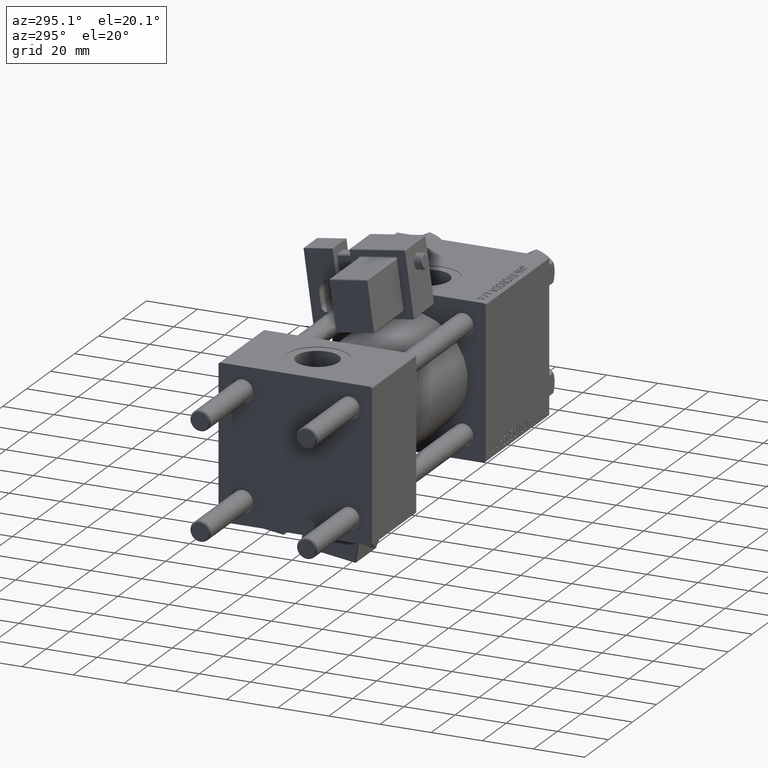
[diagram: clean part render]
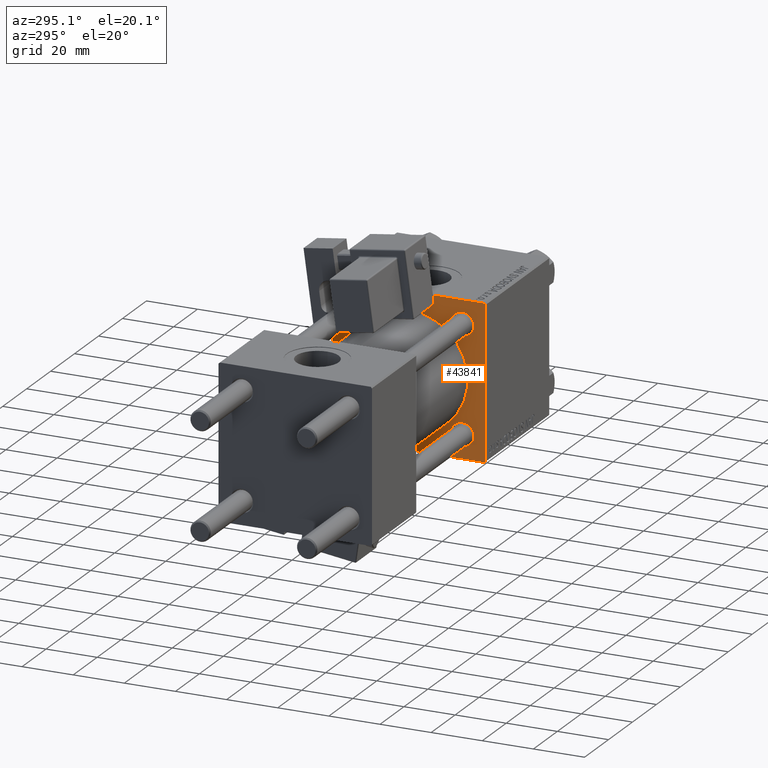
[diagram: same view with one face highlighted and labeled with its STEP entity id]
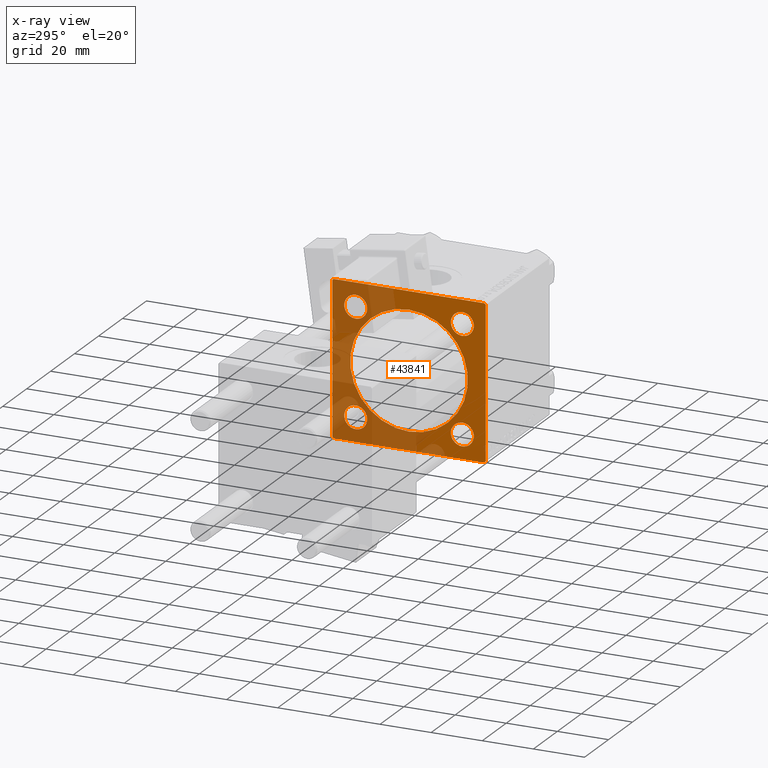
[diagram: x-ray of the same camera — body ghosted, the highlighted face saturated]
A machine part, auxiliary view. The second image highlights one B-rep face of the part: STEP entity #43841.
The next image is the same camera in x-ray: the body ghosted, the highlighted face saturated — about 50% of this face is hidden behind the body in this view.
In plain terms, the highlighted planar face has unit normal (-1, 0, 0).
Its self-contained STEP definition (entity closure, byte-faithful):
#621 = ORIENTED_EDGE ( 'NONE', *, *, #51734, .T. ) ;
#1034 = DIRECTION ( 'NONE',  ( 0.000000000000000000, -1.000000000000000000, -1.156482317317871478E-16 ) ) ;
#1044 = VERTEX_POINT ( 'NONE', #7725 ) ;
#1045 = CIRCLE ( 'NONE', #40900, 4.500000000000003553 ) ;
#1445 = CARTESIAN_POINT ( 'NONE',  ( 95.00000000000000000, -29.74999999999999645, -29.74999999999999645 ) ) ;
#1521 = VERTEX_POINT ( 'NONE', #49293 ) ;
#1912 = CARTESIAN_POINT ( 'NONE',  ( 95.00000000000000000, 20.84999999999999787, -20.85000000000000142 ) ) ;
#1961 = AXIS2_PLACEMENT_3D ( 'NONE', #8359, #15533, #48157 ) ;
#2458 = AXIS2_PLACEMENT_3D ( 'NONE', #2661, #35549, #39269 ) ;
#2661 = CARTESIAN_POINT ( 'NONE',  ( 95.00000000000000000, -20.84999999999999076, 20.85000000000000497 ) ) ;
#2669 = CARTESIAN_POINT ( 'NONE',  ( 95.00000000000000000, 30.00000000000000000, 30.00000000000000000 ) ) ;
#2690 = EDGE_LOOP ( 'NONE', ( #12554, #621 ) ) ;
#2717 = VERTEX_POINT ( 'NONE', #15092 ) ;
#3229 = EDGE_LOOP ( 'NONE', ( #28483, #6792 ) ) ;
#3376 = DIRECTION ( 'NONE',  ( 1.000000000000000000, -0.000000000000000000, 0.000000000000000000 ) ) ;
#3587 = CARTESIAN_POINT ( 'NONE',  ( 95.00000000000000000, 0.000000000000000000, 23.00000000000000000 ) ) ;
#3860 = DIRECTION ( 'NONE',  ( 0.000000000000000000, -1.000000000000000000, -1.156482317317871478E-16 ) ) ;
#4090 = DIRECTION ( 'NONE',  ( -0.000000000000000000, -0.7071067811865474617, -0.7071067811865474617 ) ) ;
#4539 = ORIENTED_EDGE ( 'NONE', *, *, #18459, .T. ) ;
#4785 = CARTESIAN_POINT ( 'NONE',  ( 95.00000000000000000, -29.50000000000000000, 29.99999999999999289 ) ) ;
#5288 = FACE_BOUND ( 'NONE', #38736, .T. ) ;
#5803 = EDGE_CURVE ( 'NONE', #38784, #17542, #22262, .T. ) ;
#6792 = ORIENTED_EDGE ( 'NONE', *, *, #9576, .T. ) ;
#6959 = EDGE_LOOP ( 'NONE', ( #17771, #35581, #27398, #28347, #28892, #27233, #23309, #4539 ) ) ;
#7725 = CARTESIAN_POINT ( 'NONE',  ( 95.00000000000000000, 20.84999999999999787, 25.35000000000000497 ) ) ;
#8209 = FACE_BOUND ( 'NONE', #2690, .T. ) ;
#8359 = CARTESIAN_POINT ( 'NONE',  ( 95.00000000000000000, 20.84999999999999787, 20.85000000000000142 ) ) ;
#8588 = EDGE_CURVE ( 'NONE', #25941, #43987, #50641, .T. ) ;
#9153 = AXIS2_PLACEMENT_3D ( 'NONE', #40187, #44430, #36733 ) ;
#9508 = EDGE_CURVE ( 'NONE', #19907, #2717, #40484, .T. ) ;
#9576 = EDGE_CURVE ( 'NONE', #50157, #1044, #19323, .T. ) ;
#9592 = DIRECTION ( 'NONE',  ( 1.000000000000000000, -0.000000000000000000, 0.000000000000000000 ) ) ;
#10347 = LINE ( 'NONE', #2669, #18720 ) ;
#10831 = AXIS2_PLACEMENT_3D ( 'NONE', #36097, #27129, #19410 ) ;
#11128 = DIRECTION ( 'NONE',  ( 0.000000000000000000, 0.000000000000000000, -1.000000000000000000 ) ) ;
#11184 = EDGE_LOOP ( 'NONE', ( #35089, #45853 ) ) ;
#12437 = AXIS2_PLACEMENT_3D ( 'NONE', #12982, #37660, #29457 ) ;
#12554 = ORIENTED_EDGE ( 'NONE', *, *, #21989, .T. ) ;
#12720 = FACE_BOUND ( 'NONE', #11184, .T. ) ;
#12982 = CARTESIAN_POINT ( 'NONE',  ( 95.00000000000000000, 0.000000000000000000, 0.000000000000000000 ) ) ;
#13376 = DIRECTION ( 'NONE',  ( 1.000000000000000000, -0.000000000000000000, 0.000000000000000000 ) ) ;
#14147 = EDGE_CURVE ( 'NONE', #19131, #14720, #10347, .T. ) ;
#14720 = VERTEX_POINT ( 'NONE', #18925 ) ;
#14761 = EDGE_CURVE ( 'NONE', #40895, #19131, #28184, .T. ) ;
#15092 = CARTESIAN_POINT ( 'NONE',  ( 95.00000000000000000, 20.84999999999999787, -25.35000000000000497 ) ) ;
#15368 = LINE ( 'NONE', #35008, #23819 ) ;
#15533 = DIRECTION ( 'NONE',  ( 1.000000000000000000, -0.000000000000000000, 0.000000000000000000 ) ) ;
#15616 = EDGE_CURVE ( 'NONE', #31967, #49813, #15368, .T. ) ;
#16301 = LINE ( 'NONE', #29313, #51021 ) ;
#17542 = VERTEX_POINT ( 'NONE', #40110 ) ;
#17771 = ORIENTED_EDGE ( 'NONE', *, *, #5803, .T. ) ;
#17832 = ORIENTED_EDGE ( 'NONE', *, *, #35845, .T. ) ;
#18158 = CARTESIAN_POINT ( 'NONE',  ( 95.00000000000000000, 2.816687638038911957E-15, -23.00000000000000000 ) ) ;
#18459 = EDGE_CURVE ( 'NONE', #14720, #38784, #16301, .T. ) ;
#18720 = VECTOR ( 'NONE', #11128, 1000.000000000000000 ) ;
#18925 = CARTESIAN_POINT ( 'NONE',  ( 95.00000000000000000, 30.00000000000000000, -29.49999999999997868 ) ) ;
#19098 = EDGE_CURVE ( 'NONE', #2717, #19907, #1045, .T. ) ;
#19131 = VERTEX_POINT ( 'NONE', #46995 ) ;
#19174 = EDGE_CURVE ( 'NONE', #31967, #28905, #37742, .T. ) ;
#19323 = CIRCLE ( 'NONE', #37127, 4.500000000000003553 ) ;
#19410 = DIRECTION ( 'NONE',  ( 0.000000000000000000, 0.000000000000000000, -1.000000000000000000 ) ) ;
#19630 = EDGE_CURVE ( 'NONE', #1044, #50157, #49363, .T. ) ;
#19907 = VERTEX_POINT ( 'NONE', #51580 ) ;
#20380 = ORIENTED_EDGE ( 'NONE', *, *, #28458, .T. ) ;
#20425 = FACE_BOUND ( 'NONE', #3229, .T. ) ;
#20559 = VECTOR ( 'NONE', #38534, 1000.000000000000000 ) ;
#20956 = FACE_BOUND ( 'NONE', #46942, .T. ) ;
#21989 = EDGE_CURVE ( 'NONE', #26106, #1521, #22385, .T. ) ;
#22262 = LINE ( 'NONE', #33404, #22589 ) ;
#22348 = CARTESIAN_POINT ( 'NONE',  ( 95.00000000000000000, -30.00000000000000000, 29.99999999999999289 ) ) ;
#22385 = CIRCLE ( 'NONE', #23204, 4.500000000000003553 ) ;
#22589 = VECTOR ( 'NONE', #1034, 1000.000000000000000 ) ;
#23204 = AXIS2_PLACEMENT_3D ( 'NONE', #51971, #27577, #51195 ) ;
#23309 = ORIENTED_EDGE ( 'NONE', *, *, #14147, .T. ) ;
#23540 = CARTESIAN_POINT ( 'NONE',  ( 95.00000000000000000, -20.84999999999999076, -20.85000000000000497 ) ) ;
#23620 = CIRCLE ( 'NONE', #2458, 4.500000000000003553 ) ;
#23819 = VECTOR ( 'NONE', #28104, 1000.000000000000114 ) ;
#24033 = LINE ( 'NONE', #40219, #37822 ) ;
#24399 = CIRCLE ( 'NONE', #10831, 23.00000000000000000 ) ;
#24412 = VERTEX_POINT ( 'NONE', #3587 ) ;
#24508 = VERTEX_POINT ( 'NONE', #18158 ) ;
#25941 = VERTEX_POINT ( 'NONE', #49142 ) ;
#26106 = VERTEX_POINT ( 'NONE', #46489 ) ;
#26314 = CARTESIAN_POINT ( 'NONE',  ( 95.00000000000000000, -20.84999999999999076, -20.85000000000000497 ) ) ;
#27089 = DIRECTION ( 'NONE',  ( 0.000000000000000000, 0.000000000000000000, 1.000000000000000000 ) ) ;
#27129 = DIRECTION ( 'NONE',  ( 1.000000000000000000, 0.000000000000000000, 0.000000000000000000 ) ) ;
#27233 = ORIENTED_EDGE ( 'NONE', *, *, #14761, .T. ) ;
#27398 = ORIENTED_EDGE ( 'NONE', *, *, #19174, .F. ) ;
#27577 = DIRECTION ( 'NONE',  ( 1.000000000000000000, -0.000000000000000000, 0.000000000000000000 ) ) ;
#27770 = AXIS2_PLACEMENT_3D ( 'NONE', #23540, #3376, #35743 ) ;
#28104 = DIRECTION ( 'NONE',  ( -0.000000000000000000, 0.7071067811865474617, 0.7071067811865474617 ) ) ;
#28184 = LINE ( 'NONE', #44108, #41711 ) ;
#28347 = ORIENTED_EDGE ( 'NONE', *, *, #15616, .T. ) ;
#28458 = EDGE_CURVE ( 'NONE', #24508, #24412, #43658, .T. ) ;
#28483 = ORIENTED_EDGE ( 'NONE', *, *, #19630, .T. ) ;
#28489 = CARTESIAN_POINT ( 'NONE',  ( 95.00000000000000000, 29.50000000000000000, -29.99999999999999289 ) ) ;
#28892 = ORIENTED_EDGE ( 'NONE', *, *, #31563, .F. ) ;
#28905 = VERTEX_POINT ( 'NONE', #30840 ) ;
#29313 = CARTESIAN_POINT ( 'NONE',  ( 95.00000000000000000, 29.74999999999999645, -29.74999999999999645 ) ) ;
#29457 = DIRECTION ( 'NONE',  ( -0.000000000000000000, 0.000000000000000000, 1.000000000000000000 ) ) ;
#29838 = DIRECTION ( 'NONE',  ( 0.000000000000000000, 0.000000000000000000, 1.000000000000000000 ) ) ;
#30238 = CARTESIAN_POINT ( 'NONE',  ( 95.00000000000000000, -20.84999999999999076, -25.35000000000000853 ) ) ;
#30349 = VECTOR ( 'NONE', #42843, 1000.000000000000114 ) ;
#30528 = CIRCLE ( 'NONE', #36448, 4.500000000000003553 ) ;
#30840 = CARTESIAN_POINT ( 'NONE',  ( 95.00000000000000000, -30.00000000000000000, -29.49999999999998579 ) ) ;
#31043 = CARTESIAN_POINT ( 'NONE',  ( 95.00000000000000000, 20.84999999999999787, 16.34999999999999787 ) ) ;
#31330 = DIRECTION ( 'NONE',  ( 1.000000000000000000, -0.000000000000000000, 0.000000000000000000 ) ) ;
#31536 = DIRECTION ( 'NONE',  ( 1.000000000000000000, 0.000000000000000000, 0.000000000000000000 ) ) ;
#31563 = EDGE_CURVE ( 'NONE', #40895, #49813, #24033, .T. ) ;
#31967 = VERTEX_POINT ( 'NONE', #47713 ) ;
#33404 = CARTESIAN_POINT ( 'NONE',  ( 95.00000000000000000, 30.00000000000000000, -29.99999999999999289 ) ) ;
#35008 = CARTESIAN_POINT ( 'NONE',  ( 95.00000000000000000, -29.74999999999999645, 29.74999999999999645 ) ) ;
#35089 = ORIENTED_EDGE ( 'NONE', *, *, #8588, .T. ) ;
#35549 = DIRECTION ( 'NONE',  ( 1.000000000000000000, -0.000000000000000000, 0.000000000000000000 ) ) ;
#35581 = ORIENTED_EDGE ( 'NONE', *, *, #49208, .T. ) ;
#35743 = DIRECTION ( 'NONE',  ( 0.000000000000000000, 0.000000000000000000, 1.000000000000000000 ) ) ;
#35845 = EDGE_CURVE ( 'NONE', #24412, #24508, #24399, .T. ) ;
#36097 = CARTESIAN_POINT ( 'NONE',  ( 95.00000000000000000, 0.000000000000000000, 0.000000000000000000 ) ) ;
#36448 = AXIS2_PLACEMENT_3D ( 'NONE', #26314, #31330, #27089 ) ;
#36479 = ORIENTED_EDGE ( 'NONE', *, *, #9508, .T. ) ;
#36733 = DIRECTION ( 'NONE',  ( 0.000000000000000000, 0.000000000000000000, 1.000000000000000000 ) ) ;
#36869 = PLANE ( 'NONE',  #12437 ) ;
#37127 = AXIS2_PLACEMENT_3D ( 'NONE', #49440, #13376, #29838 ) ;
#37660 = DIRECTION ( 'NONE',  ( -1.000000000000000000, 0.000000000000000000, -0.000000000000000000 ) ) ;
#37716 = AXIS2_PLACEMENT_3D ( 'NONE', #40009, #31536, #47687 ) ;
#37742 = LINE ( 'NONE', #22348, #20559 ) ;
#37822 = VECTOR ( 'NONE', #3860, 1000.000000000000000 ) ;
#38534 = DIRECTION ( 'NONE',  ( 0.000000000000000000, 0.000000000000000000, -1.000000000000000000 ) ) ;
#38736 = EDGE_LOOP ( 'NONE', ( #36479, #47450 ) ) ;
#38784 = VERTEX_POINT ( 'NONE', #28489 ) ;
#39269 = DIRECTION ( 'NONE',  ( 0.000000000000000000, 0.000000000000000000, 1.000000000000000000 ) ) ;
#40009 = CARTESIAN_POINT ( 'NONE',  ( 95.00000000000000000, 0.000000000000000000, 0.000000000000000000 ) ) ;
#40110 = CARTESIAN_POINT ( 'NONE',  ( 95.00000000000000000, -29.50000000000000000, -30.00000000000000000 ) ) ;
#40187 = CARTESIAN_POINT ( 'NONE',  ( 95.00000000000000000, 20.84999999999999787, -20.85000000000000142 ) ) ;
#40219 = CARTESIAN_POINT ( 'NONE',  ( 95.00000000000000000, 30.00000000000000000, 30.00000000000000000 ) ) ;
#40343 = EDGE_CURVE ( 'NONE', #43987, #25941, #30528, .T. ) ;
#40484 = CIRCLE ( 'NONE', #9153, 4.500000000000003553 ) ;
#40895 = VERTEX_POINT ( 'NONE', #51407 ) ;
#40900 = AXIS2_PLACEMENT_3D ( 'NONE', #1912, #9592, #46488 ) ;
#41711 = VECTOR ( 'NONE', #48577, 1000.000000000000114 ) ;
#42843 = DIRECTION ( 'NONE',  ( 0.000000000000000000, -0.7071067811865474617, 0.7071067811865474617 ) ) ;
#43658 = CIRCLE ( 'NONE', #37716, 23.00000000000000000 ) ;
#43841 = ADVANCED_FACE ( 'NONE', ( #8209, #20425, #5288, #12720, #20956, #49317 ), #36869, .T. ) ;
#43987 = VERTEX_POINT ( 'NONE', #30238 ) ;
#44108 = CARTESIAN_POINT ( 'NONE',  ( 95.00000000000000000, 29.74999999999999645, 29.74999999999999645 ) ) ;
#44430 = DIRECTION ( 'NONE',  ( 1.000000000000000000, -0.000000000000000000, 0.000000000000000000 ) ) ;
#45853 = ORIENTED_EDGE ( 'NONE', *, *, #40343, .T. ) ;
#46488 = DIRECTION ( 'NONE',  ( 0.000000000000000000, 0.000000000000000000, 1.000000000000000000 ) ) ;
#46489 = CARTESIAN_POINT ( 'NONE',  ( 95.00000000000000000, -20.84999999999999076, 25.35000000000000853 ) ) ;
#46942 = EDGE_LOOP ( 'NONE', ( #17832, #20380 ) ) ;
#46995 = CARTESIAN_POINT ( 'NONE',  ( 95.00000000000000000, 30.00000000000000000, 29.50000000000000000 ) ) ;
#47450 = ORIENTED_EDGE ( 'NONE', *, *, #19098, .T. ) ;
#47687 = DIRECTION ( 'NONE',  ( 0.000000000000000000, 0.000000000000000000, -1.000000000000000000 ) ) ;
#47713 = CARTESIAN_POINT ( 'NONE',  ( 95.00000000000000000, -30.00000000000000000, 29.49999999999999289 ) ) ;
#48157 = DIRECTION ( 'NONE',  ( 0.000000000000000000, 0.000000000000000000, 1.000000000000000000 ) ) ;
#48577 = DIRECTION ( 'NONE',  ( 0.000000000000000000, 0.7071067811865474617, -0.7071067811865474617 ) ) ;
#49142 = CARTESIAN_POINT ( 'NONE',  ( 95.00000000000000000, -20.84999999999999076, -16.35000000000000142 ) ) ;
#49208 = EDGE_CURVE ( 'NONE', #17542, #28905, #50257, .T. ) ;
#49293 = CARTESIAN_POINT ( 'NONE',  ( 95.00000000000000000, -20.84999999999999076, 16.35000000000000142 ) ) ;
#49317 = FACE_OUTER_BOUND ( 'NONE', #6959, .T. ) ;
#49363 = CIRCLE ( 'NONE', #1961, 4.500000000000003553 ) ;
#49440 = CARTESIAN_POINT ( 'NONE',  ( 95.00000000000000000, 20.84999999999999787, 20.85000000000000142 ) ) ;
#49813 = VERTEX_POINT ( 'NONE', #4785 ) ;
#50157 = VERTEX_POINT ( 'NONE', #31043 ) ;
#50257 = LINE ( 'NONE', #1445, #30349 ) ;
#50641 = CIRCLE ( 'NONE', #27770, 4.500000000000003553 ) ;
#51021 = VECTOR ( 'NONE', #4090, 1000.000000000000114 ) ;
#51195 = DIRECTION ( 'NONE',  ( 0.000000000000000000, 0.000000000000000000, 1.000000000000000000 ) ) ;
#51407 = CARTESIAN_POINT ( 'NONE',  ( 95.00000000000000000, 29.50000000000000000, 30.00000000000000000 ) ) ;
#51580 = CARTESIAN_POINT ( 'NONE',  ( 95.00000000000000000, 20.84999999999999787, -16.34999999999999787 ) ) ;
#51734 = EDGE_CURVE ( 'NONE', #1521, #26106, #23620, .T. ) ;
#51971 = CARTESIAN_POINT ( 'NONE',  ( 95.00000000000000000, -20.84999999999999076, 20.85000000000000497 ) ) ;